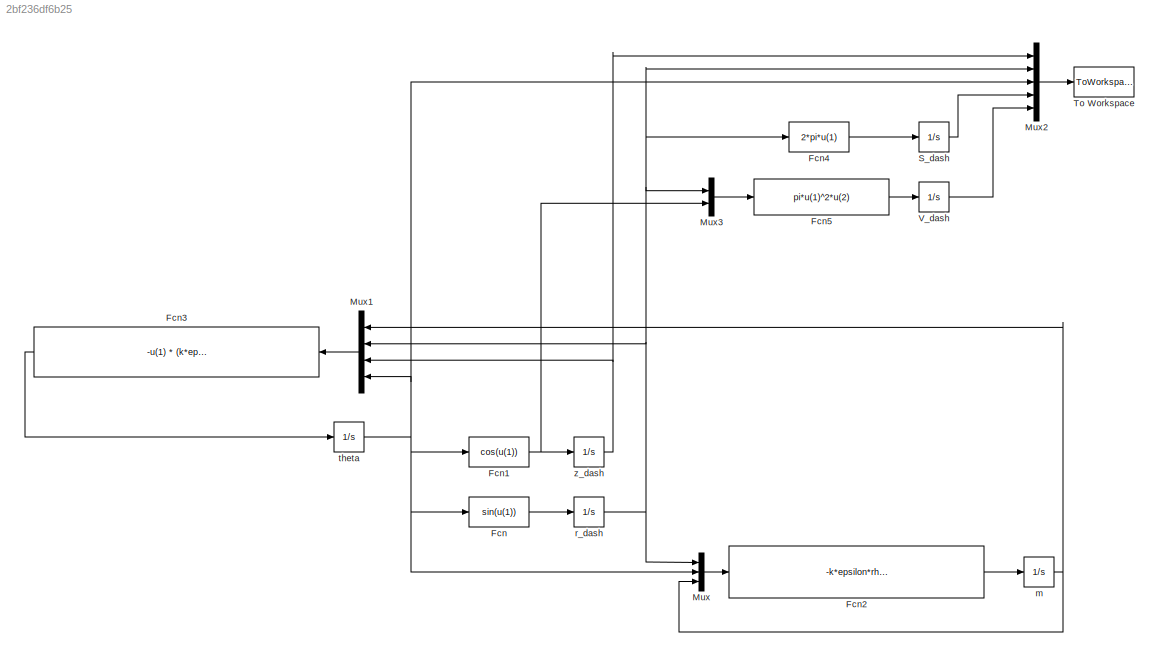
MODEL slx_2bf236df6b25
KIND model
BLOCK [Fcn] Fcn
  Expr = sin(u(1))
BLOCK [Fcn] Fcn1
  Expr = cos(u(1))
BLOCK [Fcn] Fcn2
  Expr = -k*epsilon*rho*u(1)*u(3)^2*cos(u(2))
BLOCK [Fcn] Fcn3
  Expr = -u(1) * (k*epsilon*rho*u(2)*sin(u(4)) + tb*u(2)* (u(3) +a_dash) )
BLOCK [Fcn] Fcn4
  Expr = 2*pi*u(1)
BLOCK [Fcn] Fcn5
  Expr = pi*u(1)^2*u(2)
BLOCK [Mux] Mux
  DisplayOption = bar
  Inputs = 3
  Ports = [3, 1]
BLOCK [Mux] Mux1
  DisplayOption = bar
  Ports = [4, 1]
BLOCK [Mux] Mux2
  DisplayOption = bar
  Inputs = 5
  Ports = [5, 1]
BLOCK [Mux] Mux3
  DisplayOption = bar
  Inputs = 2
  Ports = [2, 1]
BLOCK [Integrator] S_dash
  InitialCondition = S0
  Ports = [1, 1]
BLOCK [ToWorkspace] To Workspace
  MaxDataPoints = inf
  Ports = [1]
  SampleTime = -1
  SaveFormat = Timeseries
  VariableName = simout
BLOCK [Integrator] V_dash
  InitialCondition = V0
  Ports = [1, 1]
BLOCK [Integrator] m
  InitialCondition = m0
  Ports = [1, 1]
BLOCK [Integrator] r_dash
  InitialCondition = r0
  Ports = [1, 1]
BLOCK [Integrator] theta
  InitialCondition = theta_0
  Ports = [1, 1]
BLOCK [Integrator] z_dash
  InitialCondition = z0
  Ports = [1, 1]
NET Fcn1:1 -> Mux3:2, z_dash:1
LINE Fcn2:1 -> m:1
LINE Fcn3:1 -> theta:1
LINE Fcn4:1 -> S_dash:1
LINE Fcn5:1 -> V_dash:1
LINE Fcn:1 -> r_dash:1
LINE Mux1:1 -> Fcn3:1
LINE Mux2:1 -> To Workspace:1
LINE Mux3:1 -> Fcn5:1
LINE Mux:1 -> Fcn2:1
LINE S_dash:1 -> Mux2:4
LINE V_dash:1 -> Mux2:5
NET m:1 -> Mux1:1, Mux:3
NET r_dash:1 -> Fcn4:1, Mux1:2, Mux2:2, Mux3:1, Mux:1
NET theta:1 -> Fcn1:1, Fcn:1, Mux1:4, Mux2:3, Mux:2
NET z_dash:1 -> Mux1:3, Mux2:1
note: NET lines group one-source signal fan-out (src -> all destinations, sorted); 1:1 wires keep LINE
